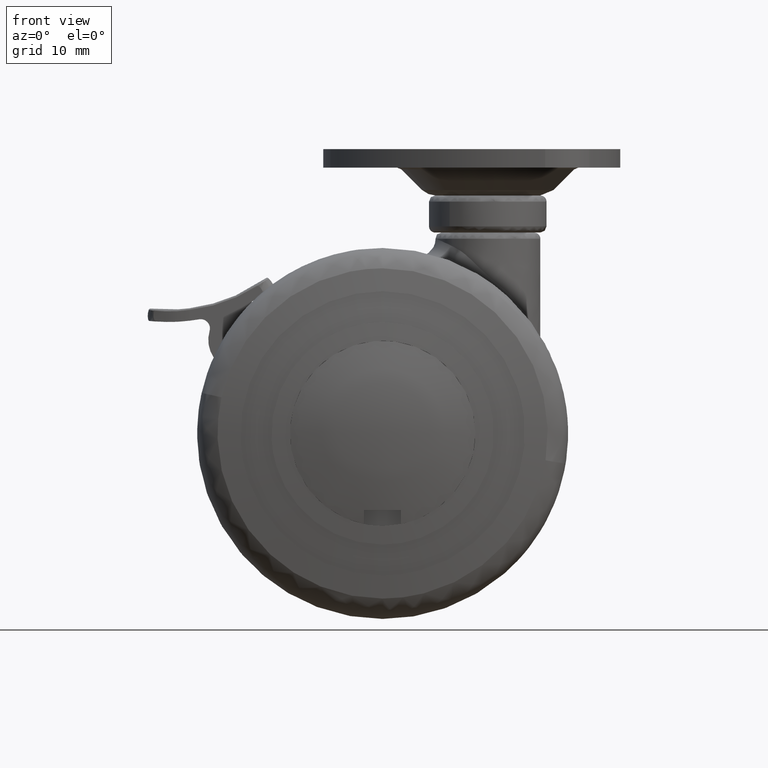
[diagram: clean part render]
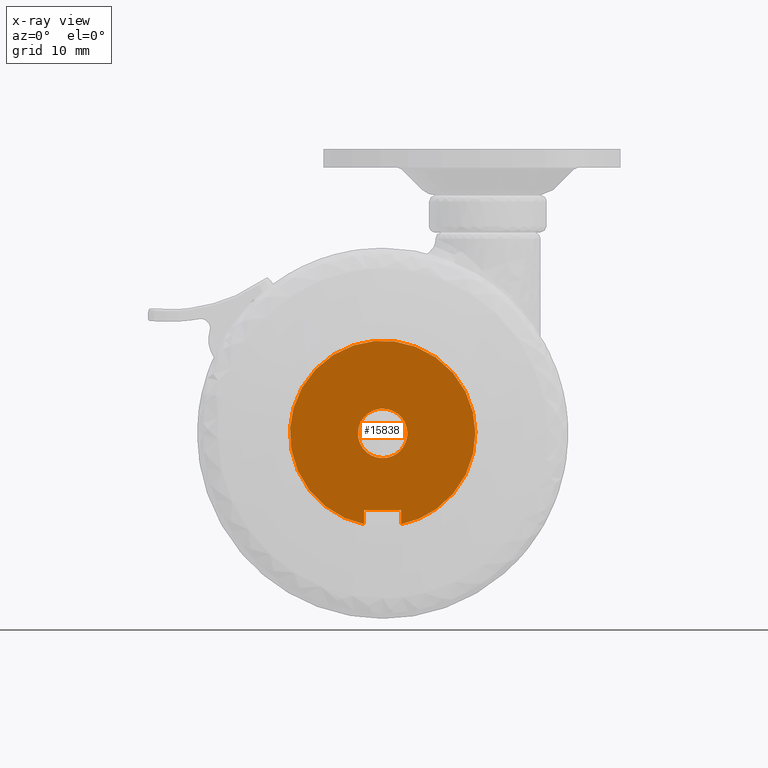
[diagram: x-ray — body ghosted, one internal face saturated and labeled with its STEP entity id]
A machine part, front view, then the same camera in x-ray: the body is ghosted and one INTERNAL B-rep face — a face not visible from any outside direction — is saturated and labeled: STEP entity #15838.
In plain terms, the highlighted face is a freeform B-spline surface patch.
Its self-contained STEP definition (entity closure, byte-faithful):
#12254=CARTESIAN_POINT('',(3.969064855286755,-20.500000000000000,-0.496512008442425));
#12255=VERTEX_POINT('',#12254);
#12256=CARTESIAN_POINT('',(0.0,-20.500000000000000,-4.0));
#12257=VERTEX_POINT('',#12256);
#12258=CARTESIAN_POINT('',(3.969064855286755,-20.500000000000000,-0.496512008442425));
#12259=CARTESIAN_POINT('',(3.530794400380180,-20.500000000000004,-4.0));
#12260=CARTESIAN_POINT('',(0.0,-20.500000000000000,-4.0));
#12268=(BOUNDED_CURVE()B_SPLINE_CURVE(2,(#12258,#12259,#12260),.UNSPECIFIED.,.F.,.U.)B_SPLINE_CURVE_WITH_KNOTS((3,3),(0.271473928981163,0.500000000000000),.UNSPECIFIED.)CURVE()GEOMETRIC_REPRESENTATION_ITEM()RATIONAL_B_SPLINE_CURVE((0.954005430254417,0.732265053906005,1.0))REPRESENTATION_ITEM(''));
#12269=EDGE_CURVE('',#12255,#12257,#12268,.T.);
#12271=CARTESIAN_POINT('',(-3.999847692254517,-20.500000000000000,0.034906142241896));
#12272=VERTEX_POINT('',#12271);
#12273=CARTESIAN_POINT('',(0.0,-20.500000000000000,-4.0));
#12274=CARTESIAN_POINT('',(-4.000000000000000,-20.500000000000007,-4.000000000000000));
#12275=CARTESIAN_POINT('',(-4.0,-20.500000000000000,0.0));
#12276=CARTESIAN_POINT('',(-4.000000000000001,-20.500000000000004,0.017453403531219));
#12277=CARTESIAN_POINT('',(-3.999847692254517,-20.500000000000004,0.034906142241896));
#12285=(BOUNDED_CURVE()B_SPLINE_CURVE(2,(#12273,#12274,#12275,#12276,#12277),.UNSPECIFIED.,.F.,.U.)B_SPLINE_CURVE_WITH_KNOTS((3,2,3),(0.500000000000000,0.750000000000000,0.751539894356865),.UNSPECIFIED.)CURVE()GEOMETRIC_REPRESENTATION_ITEM()RATIONAL_B_SPLINE_CURVE((1.0,0.707106781186548,1.0,0.998195901540741,0.996414028049775))REPRESENTATION_ITEM(''));
#12286=EDGE_CURVE('',#12257,#12272,#12285,.T.);
#12357=CARTESIAN_POINT('',(0.0,-20.500000000000000,4.0));
#12358=VERTEX_POINT('',#12357);
#12359=CARTESIAN_POINT('',(0.0,-20.500000000000000,4.0));
#12360=CARTESIAN_POINT('',(4.000000000000000,-20.500000000000007,4.000000000000000));
#12361=CARTESIAN_POINT('',(4.0,-20.500000000000000,0.0));
#12362=CARTESIAN_POINT('',(4.000000000000000,-20.500000000000000,-0.249219710258526));
#12363=CARTESIAN_POINT('',(3.969064855286755,-20.500000000000000,-0.496512008442425));
#12371=(BOUNDED_CURVE()B_SPLINE_CURVE(2,(#12359,#12360,#12361,#12362,#12363),.UNSPECIFIED.,.F.,.U.)B_SPLINE_CURVE_WITH_KNOTS((3,2,3),(0.0,0.250000000000000,0.271473928981163),.UNSPECIFIED.)CURVE()GEOMETRIC_REPRESENTATION_ITEM()RATIONAL_B_SPLINE_CURVE((1.0,0.707106781186548,1.0,0.974841727280543,0.954005430254417))REPRESENTATION_ITEM(''));
#12372=EDGE_CURVE('',#12358,#12255,#12371,.T.);
#12406=CARTESIAN_POINT('',(-3.999847692254516,-20.499999999999996,0.034906142241896));
#12407=CARTESIAN_POINT('',(-3.965244841887391,-20.499999999999996,4.0));
#12408=CARTESIAN_POINT('',(0.0,-20.500000000000000,4.0));
#12416=(BOUNDED_CURVE()B_SPLINE_CURVE(2,(#12406,#12407,#12408),.UNSPECIFIED.,.F.,.U.)B_SPLINE_CURVE_WITH_KNOTS((3,3),(0.751539894356865,1.0),.UNSPECIFIED.)CURVE()GEOMETRIC_REPRESENTATION_ITEM()RATIONAL_B_SPLINE_CURVE((0.996414028049774,0.708910879645807,1.0))REPRESENTATION_ITEM(''));
#12417=EDGE_CURVE('',#12272,#12358,#12416,.T.);
#13818=CARTESIAN_POINT('',(-3.0,-20.499999999998401,-12.400000000000000));
#13819=VERTEX_POINT('',#13818);
#13825=CARTESIAN_POINT('',(3.0,-20.500000000000000,-12.400000000000000));
#13826=VERTEX_POINT('',#13825);
#13827=CARTESIAN_POINT('',(-3.0,-20.499999999998401,-12.400000000000000));
#13828=CARTESIAN_POINT('',(3.0,-20.500000000000000,-12.400000000000000));
#13829=QUASI_UNIFORM_CURVE('',1,(#13827,#13828),.UNSPECIFIED.,.F.,.U.);
#13830=EDGE_CURVE('',#13819,#13826,#13829,.T.);
#13861=CARTESIAN_POINT('',(3.0,-20.499999999998401,-14.696938456699060));
#13862=VERTEX_POINT('',#13861);
#13863=CARTESIAN_POINT('',(3.0,-20.500000000000000,-12.400000000000000));
#13864=CARTESIAN_POINT('',(3.0,-20.499999999998401,-14.696938456699060));
#13865=QUASI_UNIFORM_CURVE('',1,(#13863,#13864),.UNSPECIFIED.,.F.,.U.);
#13866=EDGE_CURVE('',#13826,#13862,#13865,.T.);
#13896=CARTESIAN_POINT('',(-3.0,-20.499999999998401,-14.696938456699060));
#13897=VERTEX_POINT('',#13896);
#13903=CARTESIAN_POINT('',(-3.0,-20.499999999998401,-14.696938456699060));
#13904=CARTESIAN_POINT('',(-3.0,-20.499999999998401,-12.400000000000000));
#13905=QUASI_UNIFORM_CURVE('',1,(#13903,#13904),.UNSPECIFIED.,.F.,.U.);
#13906=EDGE_CURVE('',#13897,#13819,#13905,.T.);
#15803=CARTESIAN_POINT('',(-16.498441325804819,-20.500000000000000,16.483362018353599));
#15804=CARTESIAN_POINT('',(-16.498441325804819,-20.500000000000000,-16.180301271586700));
#15805=CARTESIAN_POINT('',(16.498441990901672,-20.500000000000000,16.483362018353599));
#15806=CARTESIAN_POINT('',(16.498441990901672,-20.500000000000000,-16.180301271586700));
#15807=B_SPLINE_SURFACE_WITH_KNOTS('',1,1,((#15803,#15805),(#15804,#15806)),.UNSPECIFIED.,.F.,.F.,.U.,(2,2),(2,2),(0.0,32.663663289940303),(0.0,32.996883316706487),.UNSPECIFIED.);
#15808=ORIENTED_EDGE('',*,*,#13906,.F.);
#15809=CARTESIAN_POINT('',(-3.0,-20.499999999998401,-14.696938456699060));
#15810=CARTESIAN_POINT('',(-16.287048005877153,-20.500000000000004,-11.984731139843753));
#15811=CARTESIAN_POINT('',(-14.924042295076861,-20.500000000000000,1.507634430078121));
#15812=CARTESIAN_POINT('',(-13.561036584276568,-20.500000000000004,14.999999999999998));
#15813=CARTESIAN_POINT('',(0.0,-20.500000000000000,15.0));
#15814=CARTESIAN_POINT('',(13.561036584276568,-20.500000000000004,14.999999999999998));
#15815=CARTESIAN_POINT('',(14.924042295076861,-20.500000000000000,1.507634430078128));
#15816=CARTESIAN_POINT('',(16.287048005877153,-20.500000000000004,-11.984731139843747));
#15817=CARTESIAN_POINT('',(3.0,-20.499999999998401,-14.696938456699060));
#15825=(BOUNDED_CURVE()B_SPLINE_CURVE(2,(#15809,#15810,#15811,#15812,#15813,#15814,#15815,#15816,#15817),.UNSPECIFIED.,.F.,.U.)B_SPLINE_CURVE_WITH_KNOTS((3,2,2,2,3),(0.0,0.250000000000000,0.500000000000000,0.750000000000000,1.0),.UNSPECIFIED.)CURVE()GEOMETRIC_REPRESENTATION_ITEM()RATIONAL_B_SPLINE_CURVE((1.0,0.741791399924941,1.0,0.741791399924941,1.0,0.741791399924941,1.0,0.741791399924941,1.0))REPRESENTATION_ITEM(''));
#15826=EDGE_CURVE('',#13897,#13862,#15825,.T.);
#15827=ORIENTED_EDGE('',*,*,#15826,.T.);
#15828=ORIENTED_EDGE('',*,*,#13866,.F.);
#15829=ORIENTED_EDGE('',*,*,#13830,.F.);
#15830=EDGE_LOOP('',(#15808,#15827,#15828,#15829));
#15831=FACE_OUTER_BOUND('',#15830,.T.);
#15832=ORIENTED_EDGE('',*,*,#12286,.F.);
#15833=ORIENTED_EDGE('',*,*,#12269,.F.);
#15834=ORIENTED_EDGE('',*,*,#12372,.F.);
#15835=ORIENTED_EDGE('',*,*,#12417,.F.);
#15836=EDGE_LOOP('',(#15832,#15833,#15834,#15835));
#15837=FACE_BOUND('',#15836,.T.);
#15838=ADVANCED_FACE('',(#15831,#15837),#15807,.F.);